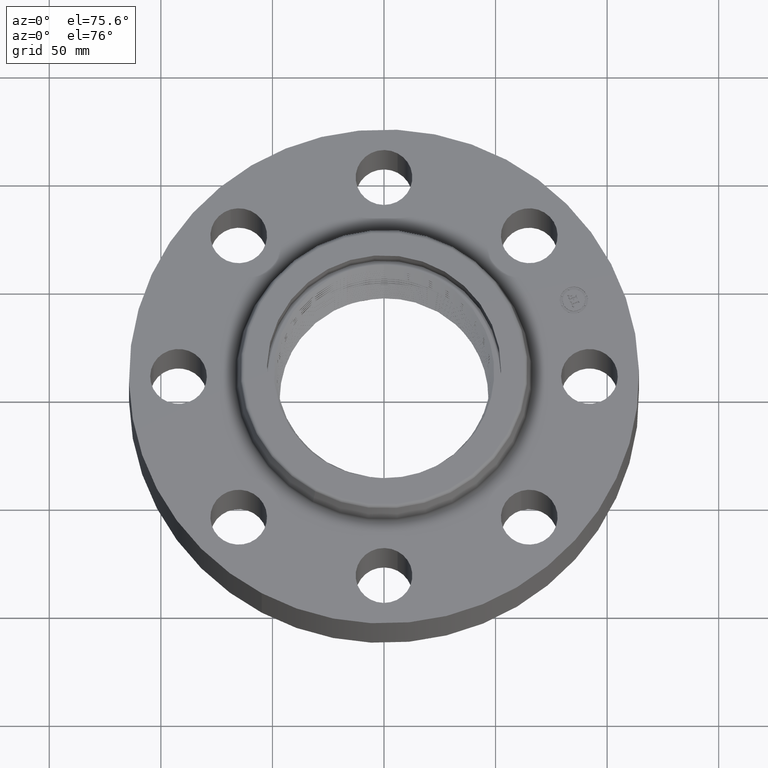
[diagram: clean part render]
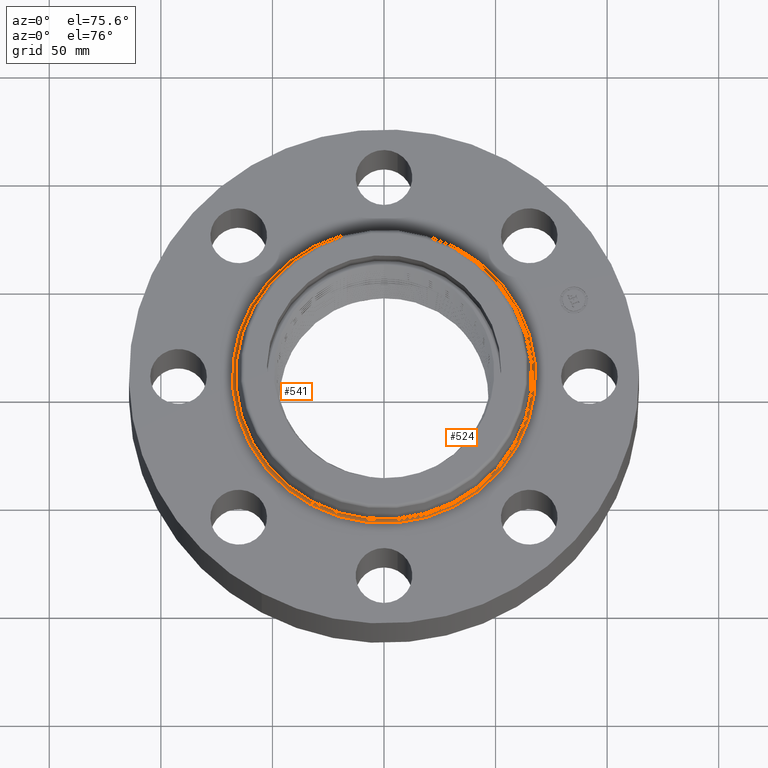
[diagram: same view with one multi-face feature highlighted, each face labeled with its STEP entity id]
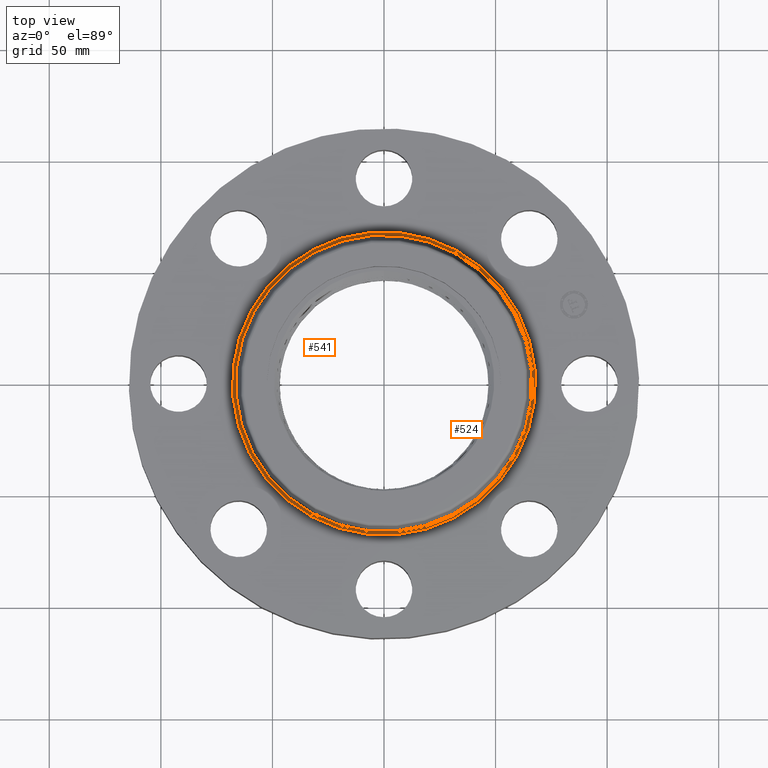
[diagram: same view with one multi-face feature highlighted, each face labeled with its STEP entity id]
A machine part, auxiliary view. The highlighted faces form ONE feature: a constant-radius fillet chain: 2 tangent blend faces with common blend radius 1.524 mm. The faces share edges in the B-rep.
A second angle (top view) of the same feature is appended — it is thin or edge-on in the first view.
Their STEP definitions:
[1] entity #541 (Torus):
#488=AXIS2_PLACEMENT_3D('Torus Axis2P3D',#485,#486,#487) ;
#501=AXIS2_PLACEMENT_3D('Circle Axis2P3D',#499,#500,$) ;
#515=AXIS2_PLACEMENT_3D('Circle Axis2P3D',#513,#514,$) ;
#527=AXIS2_PLACEMENT_3D('Circle Axis2P3D',#525,#526,$) ;
#532=AXIS2_PLACEMENT_3D('Circle Axis2P3D',#530,#531,$) ;
#485=CARTESIAN_POINT('Axis2P3D Location',(0.,0.,1.44000000001)) ;
#494=CARTESIAN_POINT('Vertex',(1.2826291864,2.34783697721,1.38000000001)) ;
#496=CARTESIAN_POINT('Vertex',(-1.2826291864,-2.34783697721,1.38000000001)) ;
#499=CARTESIAN_POINT('Axis2P3D Location',(1.2826291864,2.34783697721,1.44000000001)) ;
#503=CARTESIAN_POINT('Vertex',(1.25430066715,2.29598197056,1.42958110935)) ;
#510=CARTESIAN_POINT('Vertex',(-1.25430066715,-2.29598197056,1.42958110935)) ;
#513=CARTESIAN_POINT('Axis2P3D Location',(-1.2826291864,-2.34783697721,1.44000000001)) ;
#525=CARTESIAN_POINT('Axis2P3D Location',(0.,0.,1.38000000001)) ;
#530=CARTESIAN_POINT('Axis2P3D Location',(0.,0.,1.42958110935)) ;
#486=DIRECTION('Axis2P3D Direction',(0.,0.,-0.0393700787402)) ;
#487=DIRECTION('Axis2P3D XDirection',(-0.0188750212049,-0.0345504945626,0.)) ;
#500=DIRECTION('Axis2P3D Direction',(-0.0345504945626,0.0188750212049,0.)) ;
#514=DIRECTION('Axis2P3D Direction',(0.0345504945626,-0.0188750212049,0.)) ;
#526=DIRECTION('Axis2P3D Direction',(0.,0.,-0.0393700787402)) ;
#531=DIRECTION('Axis2P3D Direction',(0.,0.,-0.0393700787402)) ;
#536=ORIENTED_EDGE('',*,*,#529,.F.) ;
#537=ORIENTED_EDGE('',*,*,#517,.T.) ;
#538=ORIENTED_EDGE('',*,*,#534,.T.) ;
#539=ORIENTED_EDGE('',*,*,#505,.F.) ;
#541=ADVANCED_FACE('PartBody',(#540),#489,.F.) ;
#502=CIRCLE('generated circle',#501,0.0600000000002) ;
#516=CIRCLE('generated circle',#515,0.0600000000002) ;
#528=CIRCLE('generated circle',#527,2.67534597788) ;
#533=CIRCLE('generated circle',#532,2.6162575127) ;
#489=TOROIDAL_SURFACE('homeo Torus',#488,2.67534597788,0.0600000000002) ;
#505=EDGE_CURVE('',#495,#504,#502,.T.) ;
#517=EDGE_CURVE('',#497,#511,#516,.T.) ;
#529=EDGE_CURVE('',#497,#495,#528,.T.) ;
#534=EDGE_CURVE('',#511,#504,#533,.T.) ;
#535=EDGE_LOOP('',(#536,#537,#538,#539)) ;
#540=FACE_OUTER_BOUND('',#535,.T.) ;
#495=VERTEX_POINT('',#494) ;
#497=VERTEX_POINT('',#496) ;
#504=VERTEX_POINT('',#503) ;
#511=VERTEX_POINT('',#510) ;
[2] entity #524 (Torus):
#488=AXIS2_PLACEMENT_3D('Torus Axis2P3D',#485,#486,#487) ;
#492=AXIS2_PLACEMENT_3D('Circle Axis2P3D',#490,#491,$) ;
#501=AXIS2_PLACEMENT_3D('Circle Axis2P3D',#499,#500,$) ;
#508=AXIS2_PLACEMENT_3D('Circle Axis2P3D',#506,#507,$) ;
#515=AXIS2_PLACEMENT_3D('Circle Axis2P3D',#513,#514,$) ;
#485=CARTESIAN_POINT('Axis2P3D Location',(0.,0.,1.44000000001)) ;
#490=CARTESIAN_POINT('Axis2P3D Location',(0.,0.,1.38000000001)) ;
#494=CARTESIAN_POINT('Vertex',(1.2826291864,2.34783697721,1.38000000001)) ;
#496=CARTESIAN_POINT('Vertex',(-1.2826291864,-2.34783697721,1.38000000001)) ;
#499=CARTESIAN_POINT('Axis2P3D Location',(1.2826291864,2.34783697721,1.44000000001)) ;
#503=CARTESIAN_POINT('Vertex',(1.25430066715,2.29598197056,1.42958110935)) ;
#506=CARTESIAN_POINT('Axis2P3D Location',(0.,0.,1.42958110935)) ;
#510=CARTESIAN_POINT('Vertex',(-1.25430066715,-2.29598197056,1.42958110935)) ;
#513=CARTESIAN_POINT('Axis2P3D Location',(-1.2826291864,-2.34783697721,1.44000000001)) ;
#486=DIRECTION('Axis2P3D Direction',(0.,0.,-0.0393700787402)) ;
#487=DIRECTION('Axis2P3D XDirection',(-0.0188750212049,-0.0345504945626,0.)) ;
#491=DIRECTION('Axis2P3D Direction',(0.,0.,-0.0393700787402)) ;
#500=DIRECTION('Axis2P3D Direction',(-0.0345504945626,0.0188750212049,0.)) ;
#507=DIRECTION('Axis2P3D Direction',(0.,0.,-0.0393700787402)) ;
#514=DIRECTION('Axis2P3D Direction',(0.0345504945626,-0.0188750212049,0.)) ;
#519=ORIENTED_EDGE('',*,*,#498,.F.) ;
#520=ORIENTED_EDGE('',*,*,#505,.T.) ;
#521=ORIENTED_EDGE('',*,*,#512,.T.) ;
#522=ORIENTED_EDGE('',*,*,#517,.F.) ;
#524=ADVANCED_FACE('PartBody',(#523),#489,.F.) ;
#493=CIRCLE('generated circle',#492,2.67534597788) ;
#502=CIRCLE('generated circle',#501,0.0600000000002) ;
#509=CIRCLE('generated circle',#508,2.6162575127) ;
#516=CIRCLE('generated circle',#515,0.0600000000002) ;
#489=TOROIDAL_SURFACE('homeo Torus',#488,2.67534597788,0.0600000000002) ;
#498=EDGE_CURVE('',#495,#497,#493,.T.) ;
#505=EDGE_CURVE('',#495,#504,#502,.T.) ;
#512=EDGE_CURVE('',#504,#511,#509,.T.) ;
#517=EDGE_CURVE('',#497,#511,#516,.T.) ;
#518=EDGE_LOOP('',(#519,#520,#521,#522)) ;
#523=FACE_OUTER_BOUND('',#518,.T.) ;
#495=VERTEX_POINT('',#494) ;
#497=VERTEX_POINT('',#496) ;
#504=VERTEX_POINT('',#503) ;
#511=VERTEX_POINT('',#510) ;